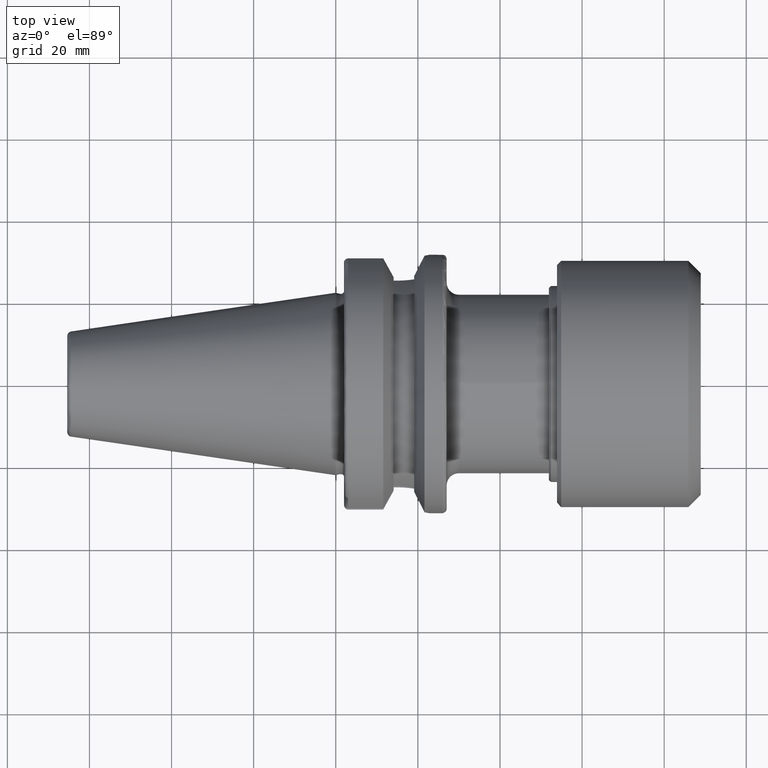
[diagram: clean part render]
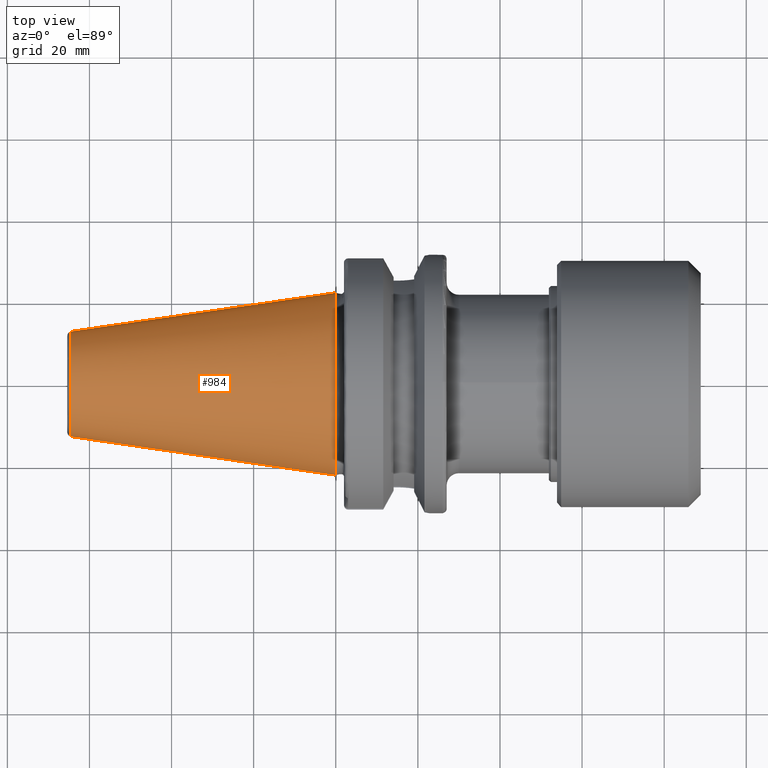
[diagram: same view with one face highlighted and labeled with its STEP entity id]
A machine part, top view. The second image highlights one B-rep face of the part: STEP entity #984.
In plain terms, the highlighted conical surface has half-angle 8.297 deg.
Its self-contained STEP definition (entity closure, byte-faithful):
#145=FACE_OUTER_BOUND('',#210,.T.);
#210=EDGE_LOOP('',(#825,#826,#827,#828,#829));
#283=LINE('',#1858,#335);
#335=VECTOR('',#1418,17.5186442890469);
#383=CIRCLE('',#1156,12.8122885780937);
#384=CIRCLE('',#1157,12.8122885780937);
#387=CIRCLE('',#1161,22.225);
#486=VERTEX_POINT('',#1848);
#487=VERTEX_POINT('',#1849);
#489=VERTEX_POINT('',#1856);
#607=EDGE_CURVE('',#486,#487,#383,.T.);
#608=EDGE_CURVE('',#487,#486,#384,.T.);
#611=EDGE_CURVE('',#489,#489,#387,.T.);
#612=EDGE_CURVE('',#489,#486,#283,.T.);
#825=ORIENTED_EDGE('',*,*,#611,.F.);
#826=ORIENTED_EDGE('',*,*,#612,.T.);
#827=ORIENTED_EDGE('',*,*,#607,.T.);
#828=ORIENTED_EDGE('',*,*,#608,.T.);
#829=ORIENTED_EDGE('',*,*,#612,.F.);
#944=CONICAL_SURFACE('',#1160,17.5186442890469,0.144812498238939);
#984=ADVANCED_FACE('',(#145),#944,.T.);
#1156=AXIS2_PLACEMENT_3D('',#1850,#1406,#1407);
#1157=AXIS2_PLACEMENT_3D('',#1851,#1408,#1409);
#1160=AXIS2_PLACEMENT_3D('',#1855,#1414,#1415);
#1161=AXIS2_PLACEMENT_3D('',#1857,#1416,#1417);
#1406=DIRECTION('center_axis',(1.,0.,0.));
#1407=DIRECTION('ref_axis',(0.,0.,-1.));
#1408=DIRECTION('center_axis',(1.,0.,0.));
#1409=DIRECTION('ref_axis',(0.,0.,-1.));
#1414=DIRECTION('center_axis',(1.,0.,0.));
#1415=DIRECTION('ref_axis',(0.,1.,0.));
#1416=DIRECTION('center_axis',(1.,0.,0.));
#1417=DIRECTION('ref_axis',(0.,0.,-1.));
#1418=DIRECTION('',(-0.989532981063282,0.144306893071729,1.76724974695192E-17));
#1848=CARTESIAN_POINT('',(-64.5443068930717,-12.8122885780937,-1.56905281969147E-15));
#1849=CARTESIAN_POINT('',(-64.5443068930717,-1.56905281969147E-15,12.8122885780937));
#1850=CARTESIAN_POINT('Origin',(-64.5443068930717,0.,0.));
#1851=CARTESIAN_POINT('Origin',(-64.5443068930717,0.,0.));
#1855=CARTESIAN_POINT('Origin',(-32.2721534465359,0.,0.));
#1856=CARTESIAN_POINT('',(4.44089209850063E-15,-22.225,-2.72177751110499E-15));
#1857=CARTESIAN_POINT('Origin',(0.,0.,0.));
#1858=CARTESIAN_POINT('',(-32.2721534465359,-17.5186442890469,-2.14541516539823E-15));